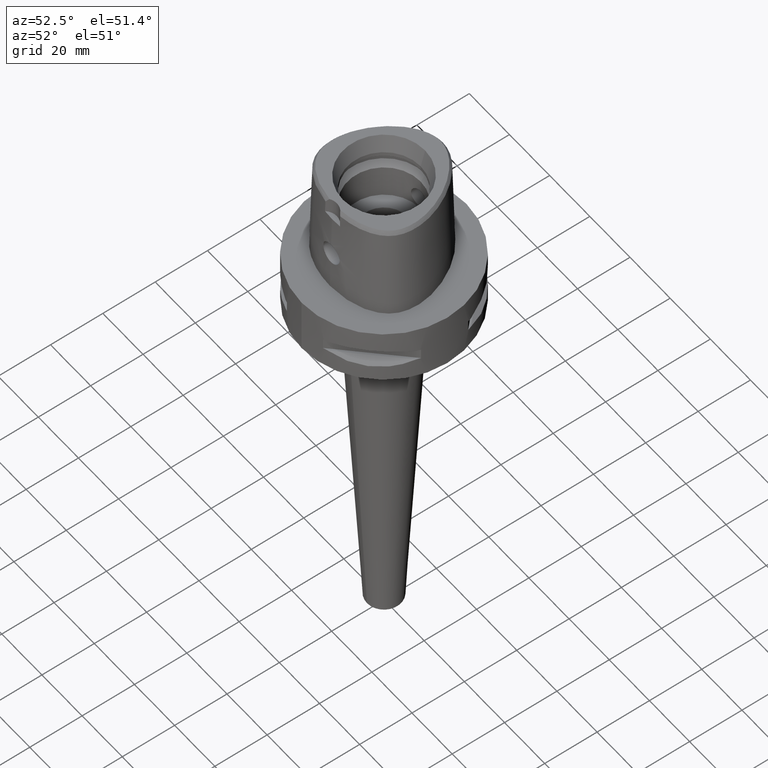
[diagram: clean part render]
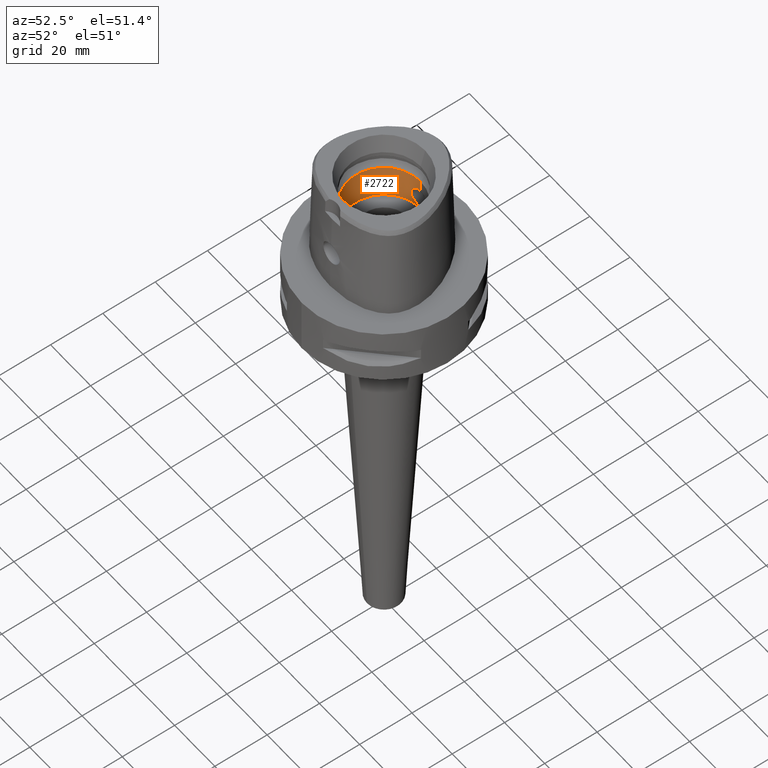
[diagram: same view with one face highlighted and labeled with its STEP entity id]
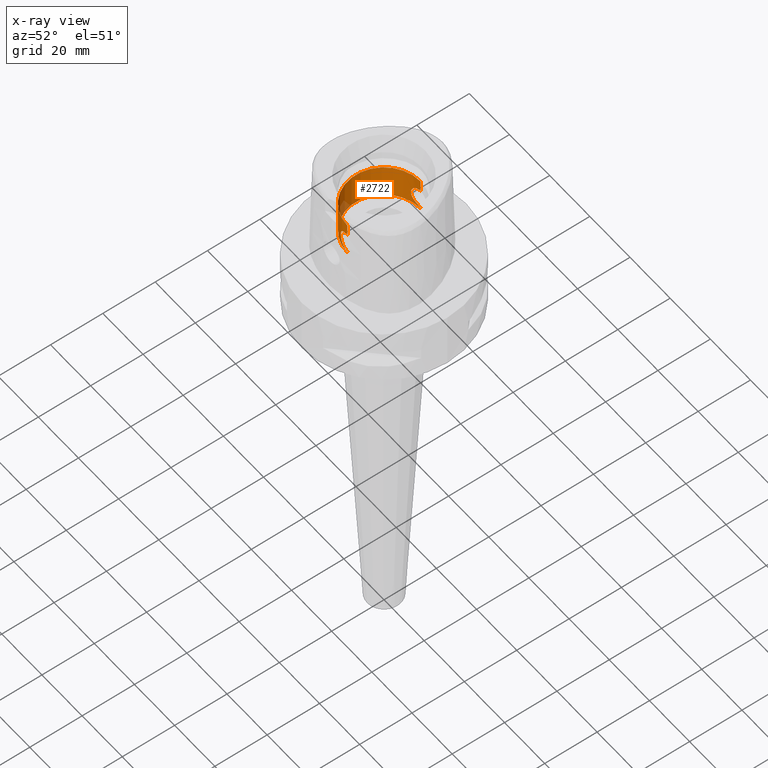
[diagram: x-ray of the same camera — body ghosted, the highlighted face saturated]
A machine part, auxiliary view. The second image highlights one B-rep face of the part: STEP entity #2722.
The next image is the same camera in x-ray: the body ghosted, the highlighted face saturated — about 4% of this face is hidden behind the body in this view.
In plain terms, the highlighted cylindrical surface (partial cylindrical patch) has radius 14 mm, axis along (0, 0, -1).
Its self-contained STEP definition (entity closure, byte-faithful):
#753=CARTESIAN_POINT('',(0.E0,0.E0,1.1E1));
#754=DIRECTION('',(0.E0,0.E0,-1.E0));
#755=DIRECTION('',(0.E0,-1.E0,0.E0));
#756=AXIS2_PLACEMENT_3D('',#753,#754,#755);
#777=CARTESIAN_POINT('',(0.E0,1.4E1,1.145E1));
#791=CARTESIAN_POINT('',(0.E0,1.4E1,1.955E1));
#796=DIRECTION('',(0.E0,0.E0,1.E0));
#797=VECTOR('',#796,4.65E0);
#798=CARTESIAN_POINT('',(0.E0,1.4E1,1.955E1));
#799=LINE('',#798,#797);
#817=CARTESIAN_POINT('',(0.E0,-1.4E1,1.145E1));
#822=DIRECTION('',(0.E0,0.E0,1.E0));
#823=VECTOR('',#822,4.5E-1);
#824=CARTESIAN_POINT('',(0.E0,1.4E1,1.1E1));
#825=LINE('',#824,#823);
#843=CARTESIAN_POINT('',(0.E0,-1.4E1,1.145E1));
#844=CARTESIAN_POINT('',(-3.549458432831E-1,-1.4E1,1.145E1));
#845=CARTESIAN_POINT('',(-1.042754851721E0,-1.397339001714E1,1.154074261713E1));
#846=CARTESIAN_POINT('',(-2.026111254894E0,-1.386340771269E1,1.193885130985E1));
#847=CARTESIAN_POINT('',(-2.888582823887E0,-1.370624524692E1,1.259386889836E1));
#848=CARTESIAN_POINT('',(-3.547276737032E0,-1.354689102804E1,1.344818455671E1));
#849=CARTESIAN_POINT('',(-3.961309758068E0,-1.342876130106E1,1.445397342852E1));
#850=CARTESIAN_POINT('',(-4.094549983967E0,-1.338766229306E1,1.550325437392E1));
#851=CARTESIAN_POINT('',(-3.960491431175E0,-1.342898427076E1,1.654396202046E1));
#852=CARTESIAN_POINT('',(-3.555608331586E0,-1.354452588466E1,1.753447150189E1));
#853=CARTESIAN_POINT('',(-2.909089264456E0,-1.370174900739E1,1.838538622889E1));
#854=CARTESIAN_POINT('',(-2.045677787018E0,-1.386078651782E1,1.905154333074E1));
#855=CARTESIAN_POINT('',(-1.047337287268E0,-1.397334200505E1,1.945915948826E1));
#856=CARTESIAN_POINT('',(-3.562242633828E-1,-1.4E1,1.955E1));
#857=CARTESIAN_POINT('',(0.E0,-1.4E1,1.955E1));
#862=DIRECTION('',(0.E0,0.E0,1.E0));
#863=VECTOR('',#862,4.65E0);
#864=CARTESIAN_POINT('',(0.E0,-1.4E1,1.955E1));
#865=LINE('',#864,#863);
#869=CARTESIAN_POINT('',(0.E0,1.4E1,1.955E1));
#870=CARTESIAN_POINT('',(-3.549690634577E-1,1.4E1,1.955E1));
#871=CARTESIAN_POINT('',(-1.042806494325E0,1.397338589456E1,1.945924304486E1));
#872=CARTESIAN_POINT('',(-2.026117789596E0,1.386340568065E1,1.906114094211E1));
#873=CARTESIAN_POINT('',(-2.888559999169E0,1.370624954117E1,1.840614639246E1));
#874=CARTESIAN_POINT('',(-3.547227964283E0,1.354690369564E1,1.755189419327E1));
#875=CARTESIAN_POINT('',(-3.961278674209E0,1.342877075481E1,1.654612465702E1));
#876=CARTESIAN_POINT('',(-4.094552161341E0,1.338766158936E1,1.549691772835E1));
#877=CARTESIAN_POINT('',(-3.960514114599E0,1.342897753841E1,1.445608722881E1));
#878=CARTESIAN_POINT('',(-3.555616297289E0,1.354452413315E1,1.346553882087E1));
#879=CARTESIAN_POINT('',(-2.909083907698E0,1.370174998570E1,1.261460877445E1));
#880=CARTESIAN_POINT('',(-2.045684559299E0,1.386078575858E1,1.194846002449E1));
#881=CARTESIAN_POINT('',(-1.047316758157E0,1.397334388795E1,1.154083381302E1));
#882=CARTESIAN_POINT('',(-3.562155131612E-1,1.4E1,1.145E1));
#883=CARTESIAN_POINT('',(0.E0,1.4E1,1.145E1));
#888=DIRECTION('',(0.E0,0.E0,1.E0));
#889=VECTOR('',#888,4.5E-1);
#890=CARTESIAN_POINT('',(0.E0,-1.4E1,1.1E1));
#891=LINE('',#890,#889);
#995=CARTESIAN_POINT('',(0.E0,0.E0,2.42E1));
#996=DIRECTION('',(0.E0,0.E0,1.E0));
#997=DIRECTION('',(0.E0,1.E0,0.E0));
#998=AXIS2_PLACEMENT_3D('',#995,#996,#997);
#1562=CARTESIAN_POINT('',(0.E0,1.4E1,1.1E1));
#1563=CARTESIAN_POINT('',(0.E0,-1.4E1,1.1E1));
#1564=VERTEX_POINT('',#1562);
#1565=VERTEX_POINT('',#1563);
#1566=VERTEX_POINT('',#777);
#1567=VERTEX_POINT('',#791);
#1568=CARTESIAN_POINT('',(0.E0,1.4E1,2.42E1));
#1569=VERTEX_POINT('',#1568);
#1570=CARTESIAN_POINT('',(0.E0,-1.4E1,2.42E1));
#1571=VERTEX_POINT('',#1570);
#1572=CARTESIAN_POINT('',(0.E0,-1.4E1,1.955E1));
#1573=VERTEX_POINT('',#1572);
#1574=VERTEX_POINT('',#817);
#2705=CARTESIAN_POINT('',(0.E0,0.E0,3.99E1));
#2706=DIRECTION('',(0.E0,0.E0,-1.E0));
#2707=DIRECTION('',(0.E0,-1.E0,0.E0));
#2708=AXIS2_PLACEMENT_3D('',#2705,#2706,#2707);
#2709=CYLINDRICAL_SURFACE('',#2708,1.4E1);
#2711=ORIENTED_EDGE('',*,*,#2710,.T.);
#2712=ORIENTED_EDGE('',*,*,#2664,.T.);
#2714=ORIENTED_EDGE('',*,*,#2713,.F.);
#2715=ORIENTED_EDGE('',*,*,#2660,.F.);
#2716=ORIENTED_EDGE('',*,*,#2697,.T.);
#2717=ORIENTED_EDGE('',*,*,#2671,.F.);
#2718=ORIENTED_EDGE('',*,*,#2644,.F.);
#2719=ORIENTED_EDGE('',*,*,#2668,.T.);
#2720=EDGE_LOOP('',(#2711,#2712,#2714,#2715,#2716,#2717,#2718,#2719));
#2721=FACE_OUTER_BOUND('',#2720,.F.);
#757=CIRCLE('',#756,1.4E1);
#858=B_SPLINE_CURVE_WITH_KNOTS('',3,(#843,#844,#845,#846,#847,#848,#849,#850,
#851,#852,#853,#854,#855,#856,#857),.UNSPECIFIED.,.F.,.F.,(4,1,1,1,1,1,1,1,1,1,
1,1,4),(0.E0,8.333333333333E-2,1.666666666667E-1,2.5E-1,3.333333333333E-1,
4.166666666667E-1,5.E-1,5.833333333333E-1,6.666666666667E-1,7.5E-1,
8.333333333333E-1,9.166666666667E-1,1.E0),.UNSPECIFIED.);
#884=B_SPLINE_CURVE_WITH_KNOTS('',3,(#869,#870,#871,#872,#873,#874,#875,#876,
#877,#878,#879,#880,#881,#882,#883),.UNSPECIFIED.,.F.,.F.,(4,1,1,1,1,1,1,1,1,1,
1,1,4),(0.E0,8.333333333333E-2,1.666666666667E-1,2.5E-1,3.333333333333E-1,
4.166666666667E-1,5.E-1,5.833333333333E-1,6.666666666667E-1,7.5E-1,
8.333333333333E-1,9.166666666667E-1,1.E0),.UNSPECIFIED.);
#999=CIRCLE('',#998,1.4E1);
#2644=EDGE_CURVE('',#1565,#1564,#757,.T.);
#2660=EDGE_CURVE('',#1567,#1569,#799,.T.);
#2664=EDGE_CURVE('',#1573,#1571,#865,.T.);
#2668=EDGE_CURVE('',#1565,#1574,#891,.T.);
#2671=EDGE_CURVE('',#1564,#1566,#825,.T.);
#2697=EDGE_CURVE('',#1567,#1566,#884,.T.);
#2710=EDGE_CURVE('',#1574,#1573,#858,.T.);
#2713=EDGE_CURVE('',#1569,#1571,#999,.T.);
#2722=ADVANCED_FACE('',(#2721),#2709,.F.);